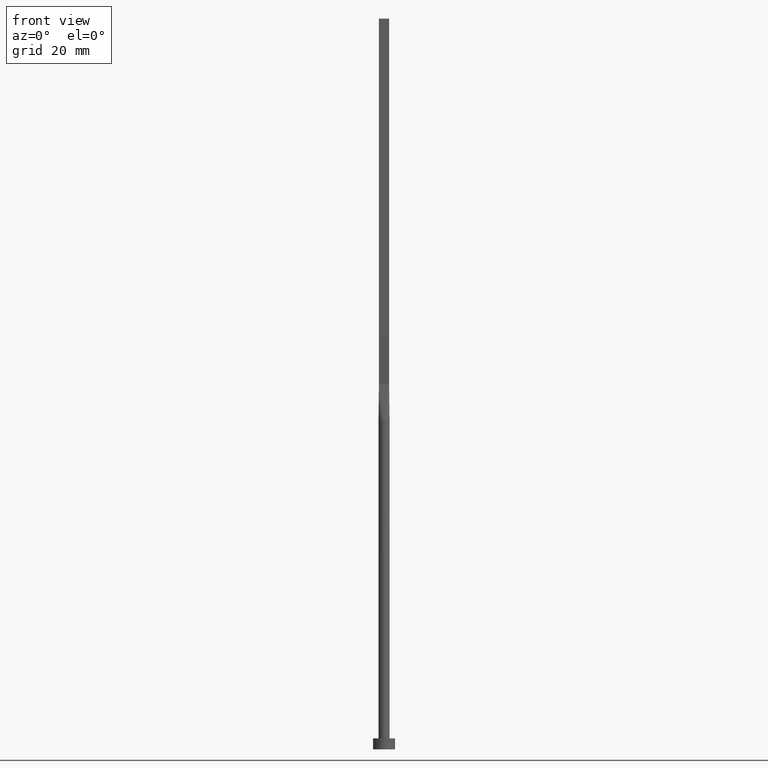
[diagram: clean part render]
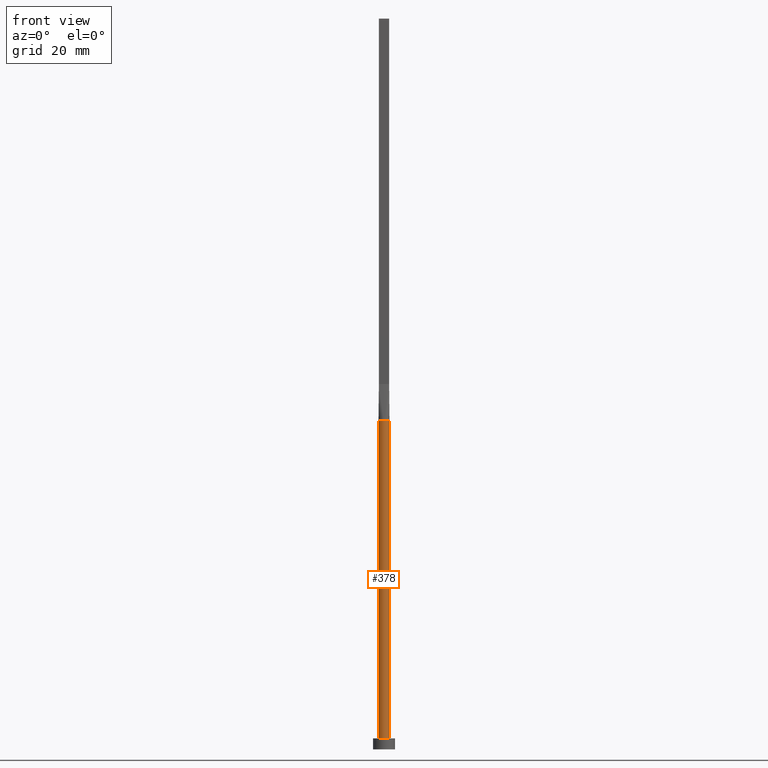
[diagram: same view with one face highlighted and labeled with its STEP entity id]
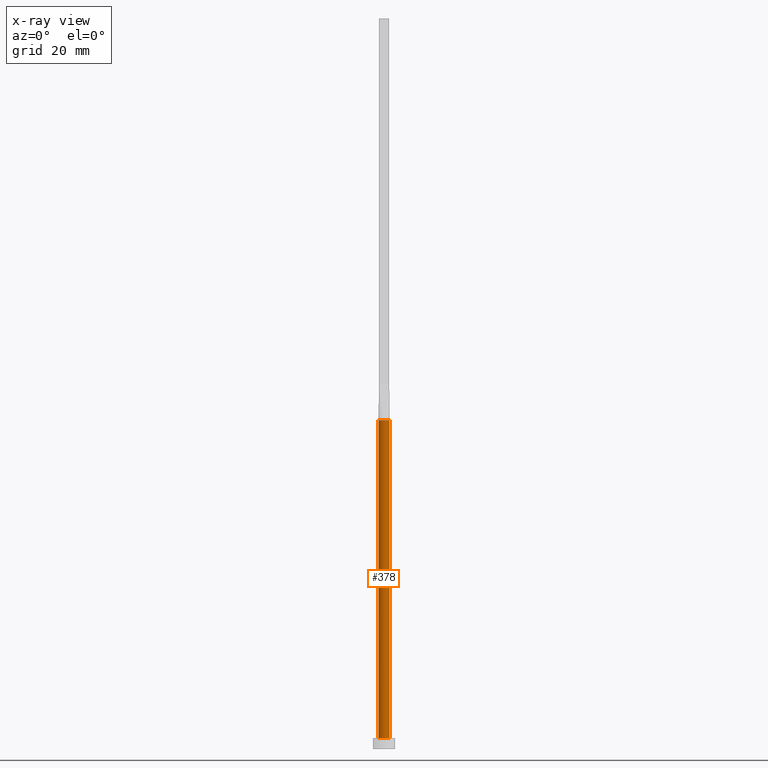
[diagram: x-ray of the same camera — body ghosted, the highlighted face saturated]
A machine part, front view. The second image highlights one B-rep face of the part: STEP entity #378.
The next image is the same camera in x-ray: the body ghosted, the highlighted face saturated — about 0% of this face is hidden behind the body in this view.
In plain terms, the highlighted cylindrical surface (edge-blend (fillet) strip) has radius 1.5 mm, axis along (-0, -0, -1).
Its self-contained STEP definition (entity closure, byte-faithful):
#16 = CARTESIAN_POINT ( 'NONE',  ( 0.000000000000000000, 0.000000000000000000, 90.00000000000000000 ) ) ;
#30 = VERTEX_POINT ( 'NONE', #348 ) ;
#45 = EDGE_CURVE ( 'NONE', #138, #30, #206, .T. ) ;
#50 = DIRECTION ( 'NONE',  ( 1.000000000000000000, 0.000000000000000000, 0.000000000000000000 ) ) ;
#60 = VECTOR ( 'NONE', #258, 1000.000000000000000 ) ;
#83 = VERTEX_POINT ( 'NONE', #241 ) ;
#85 = EDGE_CURVE ( 'NONE', #443, #138, #385, .T. ) ;
#92 = DIRECTION ( 'NONE',  ( 0.000000000000000000, 0.000000000000000000, 1.000000000000000000 ) ) ;
#93 = DIRECTION ( 'NONE',  ( 1.000000000000000000, 0.000000000000000000, 0.000000000000000000 ) ) ;
#98 = DIRECTION ( 'NONE',  ( 0.000000000000000000, 0.000000000000000000, 1.000000000000000000 ) ) ;
#99 = CARTESIAN_POINT ( 'NONE',  ( 1.500000000000000000, 1.053334699963867185E-17, 90.00000000000000000 ) ) ;
#121 = DIRECTION ( 'NONE',  ( -1.000000000000000000, 0.000000000000000000, 0.000000000000000000 ) ) ;
#122 = AXIS2_PLACEMENT_3D ( 'NONE', #522, #474, #121 ) ;
#130 = ORIENTED_EDGE ( 'NONE', *, *, #492, .T. ) ;
#138 = VERTEX_POINT ( 'NONE', #99 ) ;
#140 = LINE ( 'NONE', #461, #286 ) ;
#155 = ORIENTED_EDGE ( 'NONE', *, *, #185, .F. ) ;
#159 = ORIENTED_EDGE ( 'NONE', *, *, #45, .F. ) ;
#171 = CIRCLE ( 'NONE', #500, 1.500000000000000222 ) ;
#185 = EDGE_CURVE ( 'NONE', #580, #350, #171, .T. ) ;
#196 = CARTESIAN_POINT ( 'NONE',  ( 1.412648369950143756, -0.5045174509283282260, 90.00000000000000000 ) ) ;
#198 = CIRCLE ( 'NONE', #526, 1.500000000000000222 ) ;
#206 = LINE ( 'NONE', #444, #60 ) ;
#209 = CARTESIAN_POINT ( 'NONE',  ( -1.412629890847167724, -0.5045107419440655327, 90.00000000000000000 ) ) ;
#241 = CARTESIAN_POINT ( 'NONE',  ( -1.500000000000000222, 0.000000000000000000, 3.000000000000000000 ) ) ;
#258 = DIRECTION ( 'NONE',  ( -0.000000000000000000, -0.000000000000000000, -1.000000000000000000 ) ) ;
#272 = DIRECTION ( 'NONE',  ( 1.000000000000000000, 0.000000000000000000, 0.000000000000000000 ) ) ;
#276 = CARTESIAN_POINT ( 'NONE',  ( 0.000000000000000000, 0.000000000000000000, 3.000000000000000000 ) ) ;
#286 = VECTOR ( 'NONE', #323, 1000.000000000000000 ) ;
#290 = ORIENTED_EDGE ( 'NONE', *, *, #504, .F. ) ;
#323 = DIRECTION ( 'NONE',  ( -0.000000000000000000, -0.000000000000000000, -1.000000000000000000 ) ) ;
#343 = CYLINDRICAL_SURFACE ( 'NONE', #122, 1.500000000000000222 ) ;
#348 = CARTESIAN_POINT ( 'NONE',  ( 1.500000000000000222, 1.836970198721030181E-16, 3.000000000000000000 ) ) ;
#350 = VERTEX_POINT ( 'NONE', #209 ) ;
#358 = ORIENTED_EDGE ( 'NONE', *, *, #419, .T. ) ;
#371 = DIRECTION ( 'NONE',  ( 0.000000000000000000, 0.000000000000000000, 1.000000000000000000 ) ) ;
#378 = ADVANCED_FACE ( 'NONE', ( #384 ), #343, .T. ) ;
#384 = FACE_OUTER_BOUND ( 'NONE', #479, .T. ) ;
#385 = CIRCLE ( 'NONE', #511, 1.500000000000000222 ) ;
#404 = AXIS2_PLACEMENT_3D ( 'NONE', #543, #92, #272 ) ;
#412 = DIRECTION ( 'NONE',  ( 0.000000000000000000, 0.000000000000000000, 1.000000000000000000 ) ) ;
#413 = CARTESIAN_POINT ( 'NONE',  ( -1.500000000000000000, -6.850053904551815961E-17, 90.00000000000000000 ) ) ;
#419 = EDGE_CURVE ( 'NONE', #83, #30, #198, .T. ) ;
#428 = CIRCLE ( 'NONE', #404, 1.500000000000000222 ) ;
#443 = VERTEX_POINT ( 'NONE', #196 ) ;
#444 = CARTESIAN_POINT ( 'NONE',  ( 1.500000000000000222, 1.836970198721030181E-16, 90.00000000000000000 ) ) ;
#461 = CARTESIAN_POINT ( 'NONE',  ( -1.500000000000000222, 0.000000000000000000, 90.00000000000000000 ) ) ;
#474 = DIRECTION ( 'NONE',  ( -0.000000000000000000, -0.000000000000000000, -1.000000000000000000 ) ) ;
#479 = EDGE_LOOP ( 'NONE', ( #159, #520, #290, #155, #130, #358 ) ) ;
#492 = EDGE_CURVE ( 'NONE', #580, #83, #140, .T. ) ;
#499 = CARTESIAN_POINT ( 'NONE',  ( 0.000000000000000000, 0.000000000000000000, 90.00000000000000000 ) ) ;
#500 = AXIS2_PLACEMENT_3D ( 'NONE', #499, #371, #93 ) ;
#502 = DIRECTION ( 'NONE',  ( 1.000000000000000000, 2.664535259100375697E-15, 0.000000000000000000 ) ) ;
#504 = EDGE_CURVE ( 'NONE', #350, #443, #428, .T. ) ;
#511 = AXIS2_PLACEMENT_3D ( 'NONE', #16, #412, #502 ) ;
#520 = ORIENTED_EDGE ( 'NONE', *, *, #85, .F. ) ;
#522 = CARTESIAN_POINT ( 'NONE',  ( 0.000000000000000000, 0.000000000000000000, 90.00000000000000000 ) ) ;
#526 = AXIS2_PLACEMENT_3D ( 'NONE', #276, #98, #50 ) ;
#543 = CARTESIAN_POINT ( 'NONE',  ( 0.000000000000000000, 0.000000000000000000, 90.00000000000000000 ) ) ;
#580 = VERTEX_POINT ( 'NONE', #413 ) ;